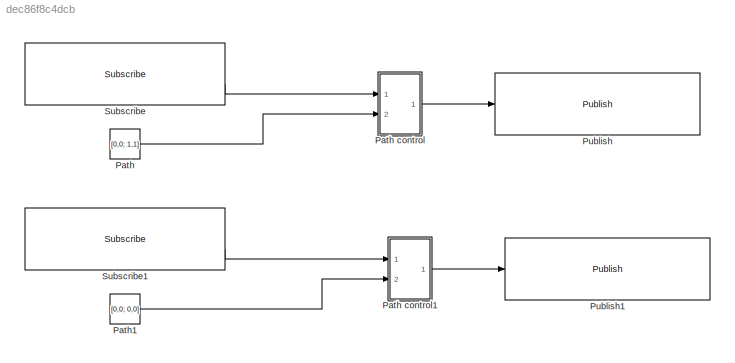
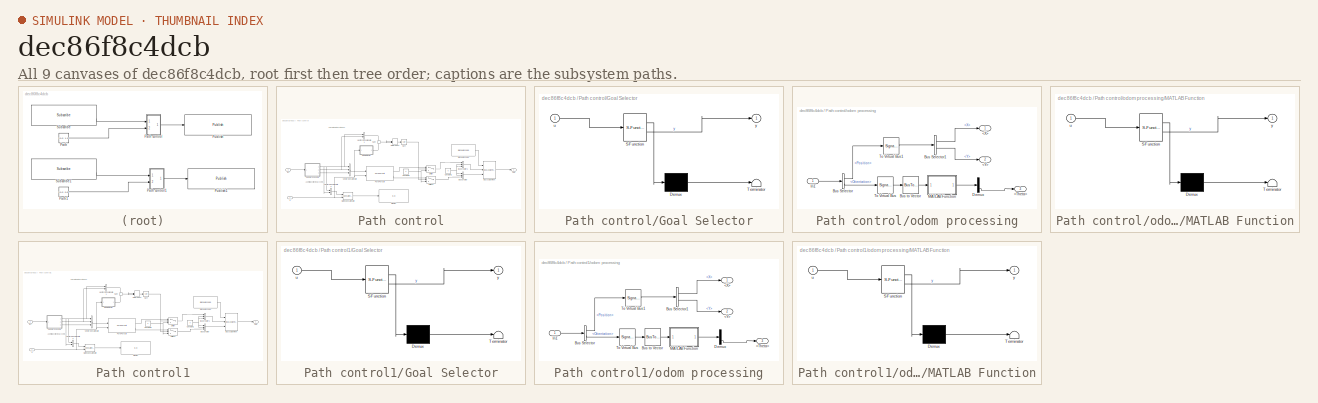
[diagram: thumbnail index - all 9 canvases of the model, root first then tree order]
MODEL slx_dec86f8c4dcb
KIND model
CONFIG AbsTol = auto
CONFIG EnableMultiTasking = off
CONFIG FixedStep = auto
CONFIG MaxStep = auto
CONFIG MinStep = auto
CONFIG RelTol = 1e-3
CONFIG SampleTimeConstraint = Unconstrained
CONFIG Solver = VariableStepAuto
CONFIG SolverName = VariableStepAuto
CONFIG StartTime = 0.0
CONFIG StopTime = inf
BLOCK [Constant] Path
  Commented = on
  Value = [0,0; 1,1]
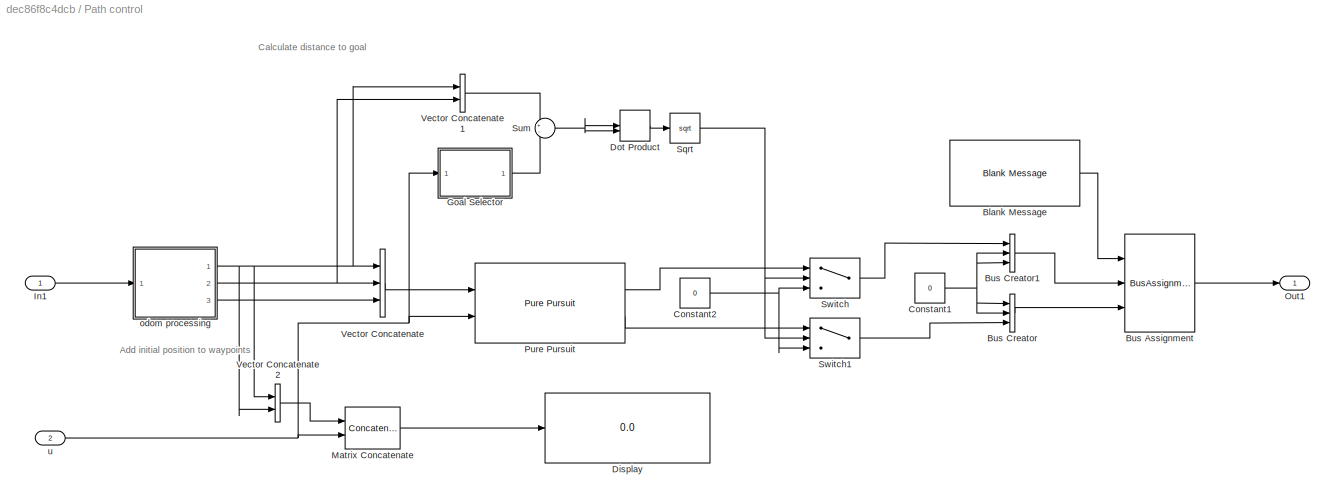
BLOCK [SubSystem] Path control
  Commented = on
  Ports = [2, 1]
  RequestExecContextInheritance = off
BLOCK [Reference] Path control/Blank Message  REF=robotlib/Blank Message
  Ports = [0, 1]
  SourceBlock = robotlib/Blank Message
  SourceProductBaseCode = RR
  SourceType = ROS Blank Message
BLOCK [BusAssignment] Path control/Bus Assignment
  AssignedSignals = Linear,Angular
  Ports = [3, 1]
BLOCK [BusCreator] Path control/Bus Creator
  DisplayOption = bar
  InheritFromInputs = on
  Inputs = 3
  Ports = [3, 1]
BLOCK [BusCreator] Path control/Bus Creator1
  DisplayOption = bar
  InheritFromInputs = on
  Inputs = 3
  Ports = [3, 1]
BLOCK [Constant] Path control/Constant1
  Value = 0
BLOCK [Constant] Path control/Constant2
  Value = 0
BLOCK [Display] Path control/Display
  Decimation = 1
  Ports = [1]
BLOCK [DotProduct] Path control/Dot Product
  OutDataTypeStr = Inherit: Inherit via internal rule
BLOCK [SubSystem] Path control/Goal Selector
  ErrorFcn = Stateflow.Translate.translate
  PermitHierarchicalResolution = ExplicitOnly
  Ports = [1, 1]
  RequestExecContextInheritance = off
  SFBlockType = MATLAB Function
  TreatAsAtomicUnit = on
BLOCK [Demux] Path control/Goal Selector/ Demux 
  Outputs = 1
  Ports = [1, 1]
BLOCK [S-Function] Path control/Goal Selector/ SFunction 
  EnableBusSupport = on
  FunctionName = sf_sfun
  PortCounts = [1 2]
  Ports = [1, 2]
  SFcnIsStateOwnerBlock = off
  SFunctionDeploymentMode = off
  Tag = Stateflow S-Function 4
BLOCK [Terminator] Path control/Goal Selector/ Terminator 
BLOCK [Inport] Path control/Goal Selector/u
BLOCK [Outport] Path control/Goal Selector/y
BLOCK [Inport] Path control/In1
BLOCK [Concatenate] Path control/Matrix Concatenate
  Mode = Multidimensional array
  Ports = [2, 1]
BLOCK [Outport] Path control/Out1
BLOCK [Reference] Path control/Pure Pursuit  REF=robotalgslib/Pure Pursuit
  Ports = [2, 2]
  SourceBlock = robotalgslib/Pure Pursuit
  SourceProductBaseCode = NV,RO
  SourceType = nav.slalgs.internal.PurePursuit
BLOCK [Sqrt] Path control/Sqrt
BLOCK [Sum] Path control/Sum
  Inputs = +-
  Ports = [2, 1]
BLOCK [Switch] Path control/Switch
  Criteria = u2 > Threshold
  InputSameDT = off
  SaturateOnIntegerOverflow = off
  Threshold = 0.1
BLOCK [Switch] Path control/Switch1
  Criteria = u2 > Threshold
  InputSameDT = off
  SaturateOnIntegerOverflow = off
  Threshold = 0.1
BLOCK [Concatenate] Path control/Vector Concatenate
  NumInputs = 3
  Ports = [3, 1]
BLOCK [Concatenate] Path control/Vector Concatenate1
  Ports = [2, 1]
BLOCK [Concatenate] Path control/Vector Concatenate2
  ConcatenateDimension = 2
  Mode = Multidimensional array
  Ports = [2, 1]
BLOCK [SubSystem] Path control/odom processing
  Ports = [1, 3]
  RequestExecContextInheritance = off
BLOCK [Outport] Path control/odom processing/<Theta>
  Port = 3
BLOCK [Outport] Path control/odom processing/<X>
BLOCK [Outport] Path control/odom processing/<Y>
  Port = 2
BLOCK [BusSelector] Path control/odom processing/Bus Selector
  OutputSignals = Pose.Pose.Position,Pose.Pose.Orientation
  Ports = [1, 2]
BLOCK [BusSelector] Path control/odom processing/Bus Selector1
  OutputSignals = X,Y
  Ports = [1, 2]
BLOCK [BusToVector] Path control/odom processing/Bus to Vector
BLOCK [Demux] Path control/odom processing/Demux
  Outputs = 3
  Ports = [1, 3]
BLOCK [Inport] Path control/odom processing/In1
BLOCK [SubSystem] Path control/odom processing/MATLAB Function
  ErrorFcn = Stateflow.Translate.translate
  PermitHierarchicalResolution = ExplicitOnly
  Ports = [1, 1]
  RequestExecContextInheritance = off
  SFBlockType = MATLAB Function
  TreatAsAtomicUnit = on
BLOCK [Demux] Path control/odom processing/MATLAB Function/ Demux 
  Outputs = 1
  Ports = [1, 1]
BLOCK [S-Function] Path control/odom processing/MATLAB Function/ SFunction 
  EnableBusSupport = on
  FunctionName = sf_sfun
  PortCounts = [1 2]
  Ports = [1, 2]
  SFcnIsStateOwnerBlock = off
  SFunctionDeploymentMode = off
  Tag = Stateflow S-Function 2
BLOCK [Terminator] Path control/odom processing/MATLAB Function/ Terminator 
BLOCK [Inport] Path control/odom processing/MATLAB Function/u
BLOCK [Outport] Path control/odom processing/MATLAB Function/y
BLOCK [SignalConversion] Path control/odom processing/To Virtual Bus
  ConversionOutput = Virtual bus
  OverrideOpt = off
BLOCK [SignalConversion] Path control/odom processing/To Virtual Bus1
  ConversionOutput = Virtual bus
  OverrideOpt = off
BLOCK [Inport] Path control/u
  Port = 2
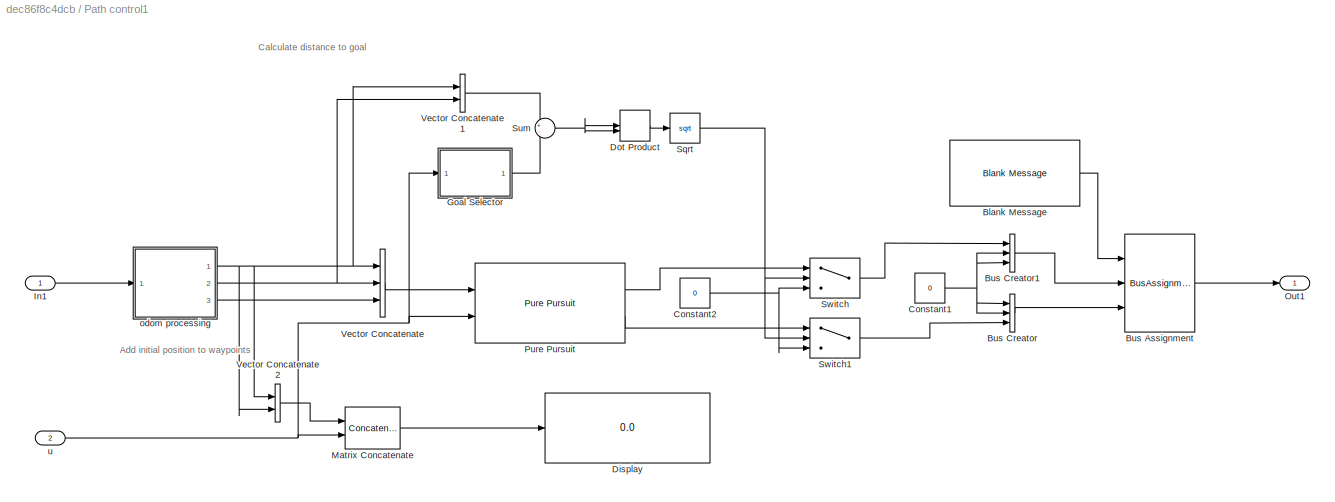
BLOCK [SubSystem] Path control1
  Commented = on
  Ports = [2, 1]
  RequestExecContextInheritance = off
BLOCK [Reference] Path control1/Blank Message  REF=robotlib/Blank Message
  Ports = [0, 1]
  SourceBlock = robotlib/Blank Message
  SourceProductBaseCode = RR
  SourceType = ROS Blank Message
BLOCK [BusAssignment] Path control1/Bus Assignment
  AssignedSignals = Linear,Angular
  Ports = [3, 1]
BLOCK [BusCreator] Path control1/Bus Creator
  DisplayOption = bar
  InheritFromInputs = on
  Inputs = 3
  Ports = [3, 1]
BLOCK [BusCreator] Path control1/Bus Creator1
  DisplayOption = bar
  InheritFromInputs = on
  Inputs = 3
  Ports = [3, 1]
BLOCK [Constant] Path control1/Constant1
  Value = 0
BLOCK [Constant] Path control1/Constant2
  Value = 0
BLOCK [Display] Path control1/Display
  Decimation = 1
  Ports = [1]
BLOCK [DotProduct] Path control1/Dot Product
  OutDataTypeStr = Inherit: Inherit via internal rule
BLOCK [SubSystem] Path control1/Goal Selector
  ErrorFcn = Stateflow.Translate.translate
  PermitHierarchicalResolution = ExplicitOnly
  Ports = [1, 1]
  RequestExecContextInheritance = off
  SFBlockType = MATLAB Function
  TreatAsAtomicUnit = on
BLOCK [Demux] Path control1/Goal Selector/ Demux 
  Outputs = 1
  Ports = [1, 1]
BLOCK [S-Function] Path control1/Goal Selector/ SFunction 
  EnableBusSupport = on
  FunctionName = sf_sfun
  PortCounts = [1 2]
  Ports = [1, 2]
  SFcnIsStateOwnerBlock = off
  SFunctionDeploymentMode = off
  Tag = Stateflow S-Function 1
BLOCK [Terminator] Path control1/Goal Selector/ Terminator 
BLOCK [Inport] Path control1/Goal Selector/u
BLOCK [Outport] Path control1/Goal Selector/y
BLOCK [Inport] Path control1/In1
BLOCK [Concatenate] Path control1/Matrix Concatenate
  Mode = Multidimensional array
  Ports = [2, 1]
BLOCK [Outport] Path control1/Out1
BLOCK [Reference] Path control1/Pure Pursuit  REF=robotalgslib/Pure Pursuit
  Ports = [2, 2]
  SourceBlock = robotalgslib/Pure Pursuit
  SourceProductBaseCode = NV,RO
  SourceType = nav.slalgs.internal.PurePursuit
BLOCK [Sqrt] Path control1/Sqrt
BLOCK [Sum] Path control1/Sum
  Inputs = +-
  Ports = [2, 1]
BLOCK [Switch] Path control1/Switch
  Criteria = u2 > Threshold
  InputSameDT = off
  SaturateOnIntegerOverflow = off
  Threshold = 0.1
BLOCK [Switch] Path control1/Switch1
  Criteria = u2 > Threshold
  InputSameDT = off
  SaturateOnIntegerOverflow = off
  Threshold = 0.1
BLOCK [Concatenate] Path control1/Vector Concatenate
  NumInputs = 3
  Ports = [3, 1]
BLOCK [Concatenate] Path control1/Vector Concatenate1
  Ports = [2, 1]
BLOCK [Concatenate] Path control1/Vector Concatenate2
  ConcatenateDimension = 2
  Mode = Multidimensional array
  Ports = [2, 1]
BLOCK [SubSystem] Path control1/odom processing
  Ports = [1, 3]
  RequestExecContextInheritance = off
BLOCK [Outport] Path control1/odom processing/<Theta>
  Port = 3
BLOCK [Outport] Path control1/odom processing/<X>
BLOCK [Outport] Path control1/odom processing/<Y>
  Port = 2
BLOCK [BusSelector] Path control1/odom processing/Bus Selector
  OutputSignals = Pose.Pose.Position,Pose.Pose.Orientation
  Ports = [1, 2]
BLOCK [BusSelector] Path control1/odom processing/Bus Selector1
  OutputSignals = X,Y
  Ports = [1, 2]
BLOCK [BusToVector] Path control1/odom processing/Bus to Vector
BLOCK [Demux] Path control1/odom processing/Demux
  Outputs = 3
  Ports = [1, 3]
BLOCK [Inport] Path control1/odom processing/In1
BLOCK [SubSystem] Path control1/odom processing/MATLAB Function
  ErrorFcn = Stateflow.Translate.translate
  PermitHierarchicalResolution = ExplicitOnly
  Ports = [1, 1]
  RequestExecContextInheritance = off
  SFBlockType = MATLAB Function
  TreatAsAtomicUnit = on
BLOCK [Demux] Path control1/odom processing/MATLAB Function/ Demux 
  Outputs = 1
  Ports = [1, 1]
BLOCK [S-Function] Path control1/odom processing/MATLAB Function/ SFunction 
  EnableBusSupport = on
  FunctionName = sf_sfun
  PortCounts = [1 2]
  Ports = [1, 2]
  SFcnIsStateOwnerBlock = off
  SFunctionDeploymentMode = off
  Tag = Stateflow S-Function 3
BLOCK [Terminator] Path control1/odom processing/MATLAB Function/ Terminator 
BLOCK [Inport] Path control1/odom processing/MATLAB Function/u
BLOCK [Outport] Path control1/odom processing/MATLAB Function/y
BLOCK [SignalConversion] Path control1/odom processing/To Virtual Bus
  ConversionOutput = Virtual bus
  OverrideOpt = off
BLOCK [SignalConversion] Path control1/odom processing/To Virtual Bus1
  ConversionOutput = Virtual bus
  OverrideOpt = off
BLOCK [Inport] Path control1/u
  Port = 2
BLOCK [Constant] Path1
  Commented = on
  Value = [0,0; 0,0]
BLOCK [Reference] Publish  REF=robotlib/Publish
  Commented = on
  Ports = [1]
  SourceBlock = robotlib/Publish
  SourceProductBaseCode = RR
  SourceType = ROS Publish
BLOCK [Reference] Publish1  REF=robotlib/Publish
  Commented = on
  Ports = [1]
  SourceBlock = robotlib/Publish
  SourceProductBaseCode = RR
  SourceType = ROS Publish
BLOCK [Reference] Subscribe  REF=robotlib/Subscribe
  Commented = on
  Ports = [0, 2]
  SourceBlock = robotlib/Subscribe
  SourceProductBaseCode = RR
  SourceType = ROS Subscribe
BLOCK [Reference] Subscribe1  REF=robotlib/Subscribe
  Commented = on
  Ports = [0, 2]
  SourceBlock = robotlib/Subscribe
  SourceProductBaseCode = RR
  SourceType = ROS Subscribe
ANNOTATION Path control: Add initial position to waypoints
ANNOTATION Path control: Calculate distance to goal
ANNOTATION Path control1: Add initial position to waypoints
ANNOTATION Path control1: Calculate distance to goal
LINE Path control/Blank Message:1 -> Path control/Bus Assignment:1
LINE Path control/Bus Assignment:1 -> Path control/Out1:1
LINE Path control/Bus Creator1:1 -> Path control/Bus Assignment:2
LINE Path control/Bus Creator:1 -> Path control/Bus Assignment:3
NET Path control/Constant1:1 -> Path control/Bus Creator1:2, Path control/Bus Creator1:3, Path control/Bus Creator:1, Path control/Bus Creator:2
NET Path control/Constant2:1 -> Path control/Switch1:3, Path control/Switch:3
LINE Path control/Dot Product:1 -> Path control/Sqrt:1
LINE Path control/Goal Selector:1 -> Path control/Sum:2
LINE Path control/In1:1 -> Path control/odom processing:1
LINE Path control/Matrix Concatenate:1 -> Path control/Display:1
LINE Path control/Pure Pursuit:1 -> Path control/Switch:1
LINE Path control/Pure Pursuit:2 -> Path control/Switch1:1
NET Path control/Sqrt:1 -> Path control/Switch1:2, Path control/Switch:2
NET Path control/Sum:1 -> Path control/Dot Product:1, Path control/Dot Product:2
LINE Path control/Switch1:1 -> Path control/Bus Creator:3
LINE Path control/Switch:1 -> Path control/Bus Creator1:1
LINE Path control/Vector Concatenate1:1 -> Path control/Sum:1
LINE Path control/Vector Concatenate2:1 -> Path control/Matrix Concatenate:1
LINE Path control/Vector Concatenate:1 -> Path control/Pure Pursuit:1
LINE Path control/odom processing/Bus Selector1:1 -> Path control/odom processing/<X>:1
LINE Path control/odom processing/Bus Selector1:2 -> Path control/odom processing/<Y>:1
LINE Path control/odom processing/Bus Selector:1 -> Path control/odom processing/To Virtual Bus1:1
LINE Path control/odom processing/Bus Selector:2 -> Path control/odom processing/To Virtual Bus:1
LINE Path control/odom processing/Bus to Vector:1 -> Path control/odom processing/MATLAB Function:1
LINE Path control/odom processing/Demux:3 -> Path control/odom processing/<Theta>:1
LINE Path control/odom processing/In1:1 -> Path control/odom processing/Bus Selector:1
LINE Path control/odom processing/MATLAB Function:1 -> Path control/odom processing/Demux:1
LINE Path control/odom processing/To Virtual Bus1:1 -> Path control/odom processing/Bus Selector1:1
LINE Path control/odom processing/To Virtual Bus:1 -> Path control/odom processing/Bus to Vector:1
NET Path control/odom processing:1 -> Path control/Vector Concatenate1:1, Path control/Vector Concatenate2:1, Path control/Vector Concatenate2:2, Path control/Vector Concatenate:1
NET Path control/odom processing:2 -> Path control/Vector Concatenate1:2, Path control/Vector Concatenate:2
LINE Path control/odom processing:3 -> Path control/Vector Concatenate:3
NET Path control/u:1 -> Path control/Goal Selector:1, Path control/Matrix Concatenate:2, Path control/Pure Pursuit:2
LINE Path control1/Blank Message:1 -> Path control1/Bus Assignment:1
LINE Path control1/Bus Assignment:1 -> Path control1/Out1:1
LINE Path control1/Bus Creator1:1 -> Path control1/Bus Assignment:2
LINE Path control1/Bus Creator:1 -> Path control1/Bus Assignment:3
NET Path control1/Constant1:1 -> Path control1/Bus Creator1:2, Path control1/Bus Creator1:3, Path control1/Bus Creator:1, Path control1/Bus Creator:2
NET Path control1/Constant2:1 -> Path control1/Switch1:3, Path control1/Switch:3
LINE Path control1/Dot Product:1 -> Path control1/Sqrt:1
LINE Path control1/Goal Selector:1 -> Path control1/Sum:2
LINE Path control1/In1:1 -> Path control1/odom processing:1
LINE Path control1/Matrix Concatenate:1 -> Path control1/Display:1
LINE Path control1/Pure Pursuit:1 -> Path control1/Switch:1
LINE Path control1/Pure Pursuit:2 -> Path control1/Switch1:1
NET Path control1/Sqrt:1 -> Path control1/Switch1:2, Path control1/Switch:2
NET Path control1/Sum:1 -> Path control1/Dot Product:1, Path control1/Dot Product:2
LINE Path control1/Switch1:1 -> Path control1/Bus Creator:3
LINE Path control1/Switch:1 -> Path control1/Bus Creator1:1
LINE Path control1/Vector Concatenate1:1 -> Path control1/Sum:1
LINE Path control1/Vector Concatenate2:1 -> Path control1/Matrix Concatenate:1
LINE Path control1/Vector Concatenate:1 -> Path control1/Pure Pursuit:1
LINE Path control1/odom processing/Bus Selector1:1 -> Path control1/odom processing/<X>:1
LINE Path control1/odom processing/Bus Selector1:2 -> Path control1/odom processing/<Y>:1
LINE Path control1/odom processing/Bus Selector:1 -> Path control1/odom processing/To Virtual Bus1:1
LINE Path control1/odom processing/Bus Selector:2 -> Path control1/odom processing/To Virtual Bus:1
LINE Path control1/odom processing/Bus to Vector:1 -> Path control1/odom processing/MATLAB Function:1
LINE Path control1/odom processing/Demux:3 -> Path control1/odom processing/<Theta>:1
LINE Path control1/odom processing/In1:1 -> Path control1/odom processing/Bus Selector:1
LINE Path control1/odom processing/MATLAB Function:1 -> Path control1/odom processing/Demux:1
LINE Path control1/odom processing/To Virtual Bus1:1 -> Path control1/odom processing/Bus Selector1:1
LINE Path control1/odom processing/To Virtual Bus:1 -> Path control1/odom processing/Bus to Vector:1
NET Path control1/odom processing:1 -> Path control1/Vector Concatenate1:1, Path control1/Vector Concatenate2:1, Path control1/Vector Concatenate2:2, Path control1/Vector Concatenate:1
NET Path control1/odom processing:2 -> Path control1/Vector Concatenate1:2, Path control1/Vector Concatenate:2
LINE Path control1/odom processing:3 -> Path control1/Vector Concatenate:3
NET Path control1/u:1 -> Path control1/Goal Selector:1, Path control1/Matrix Concatenate:2, Path control1/Pure Pursuit:2
LINE Path control1:1 -> Publish1:1
LINE Path control:1 -> Publish:1
LINE Path1:1 -> Path control1:2
LINE Path:1 -> Path control:2
LINE Subscribe1:2 -> Path control1:1
LINE Subscribe:2 -> Path control:1
note: NET lines group one-source signal fan-out (src -> all destinations, sorted); 1:1 wires keep LINE
CHART Path control/odom processing/MATLAB Function states=1 transitions=1
  STATE_LABEL 'eML_blk_kernel()'
  STATE_LABEL "SCRIPT:\nfunction y = fcn(u)\n\ny = quat2eul(u');\n\n\n"
CHART Path control1/odom processing/MATLAB Function states=1 transitions=1
  STATE_LABEL 'eML_blk_kernel()'
  STATE_LABEL "SCRIPT:\nfunction y = fcn(u)\n\ny = quat2eul(u');\n\n\n"
CHART Path control/Goal Selector states=1 transitions=1
  STATE_LABEL 'eML_blk_kernel()'
  STATE_LABEL 'SCRIPT:\nfunction y = fcn(u)\n\ny = u(end, :);\n'
CHART Path control1/Goal Selector states=1 transitions=1
  STATE_LABEL 'eML_blk_kernel()'
  STATE_LABEL 'SCRIPT:\nfunction y = fcn(u)\n\ny = u(end, :);\n'
CHART  states=0 transitions=0
CHART  states=0 transitions=0
CHART  states=0 transitions=0
CHART  states=0 transitions=0
